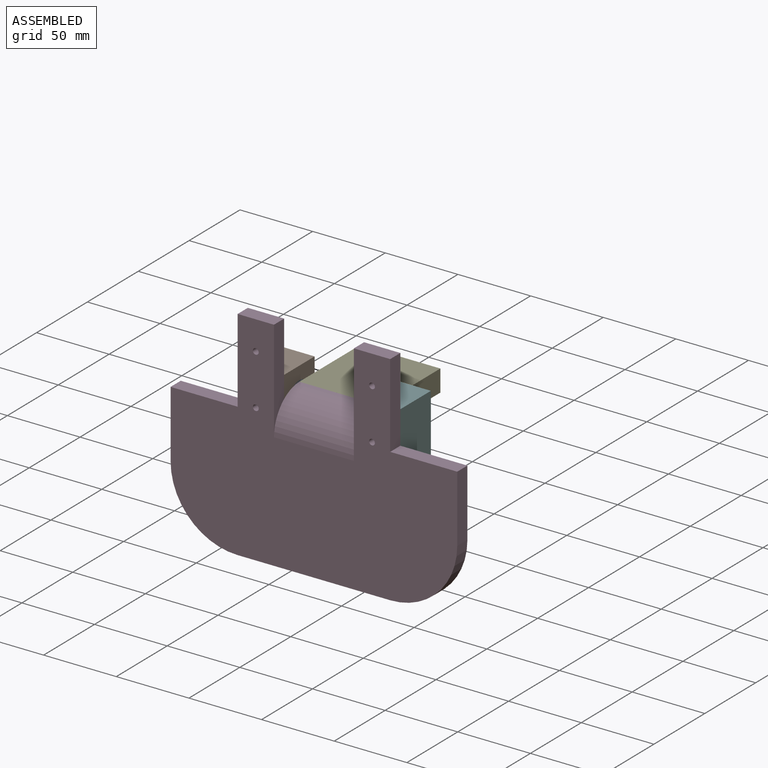
[diagram: assembled view]
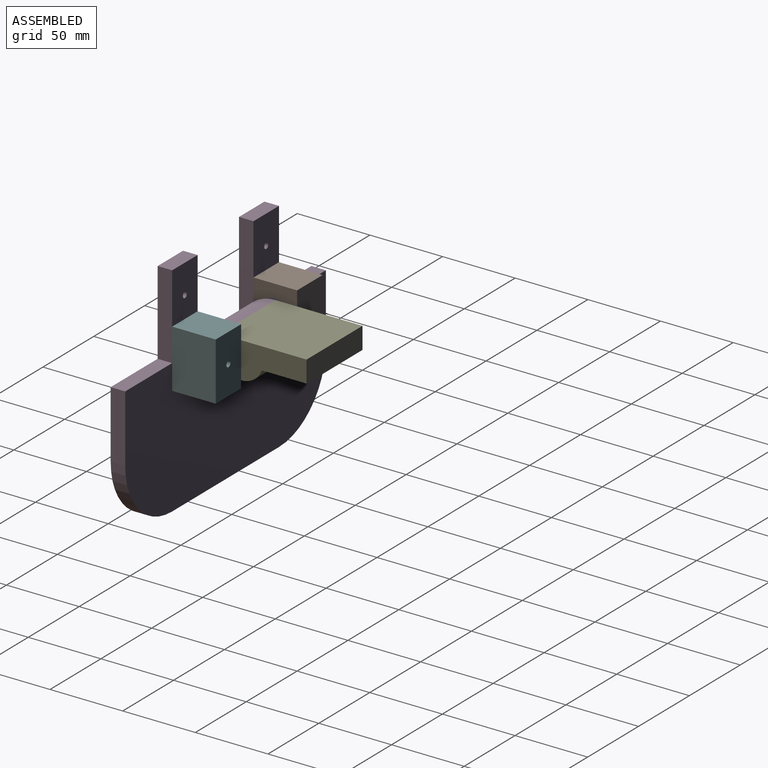
[diagram: assembled view, second angle]
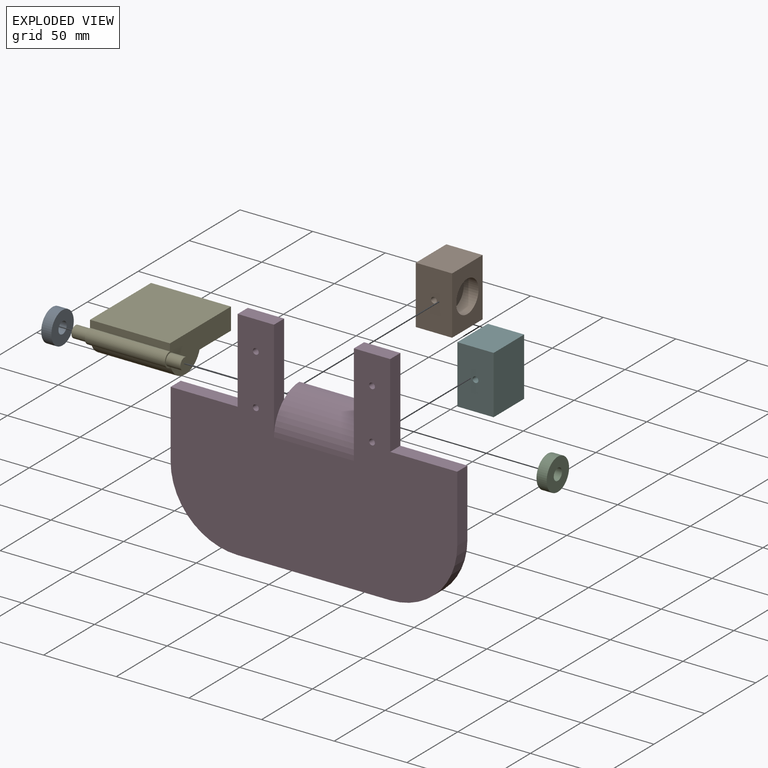
[diagram: exploded view]
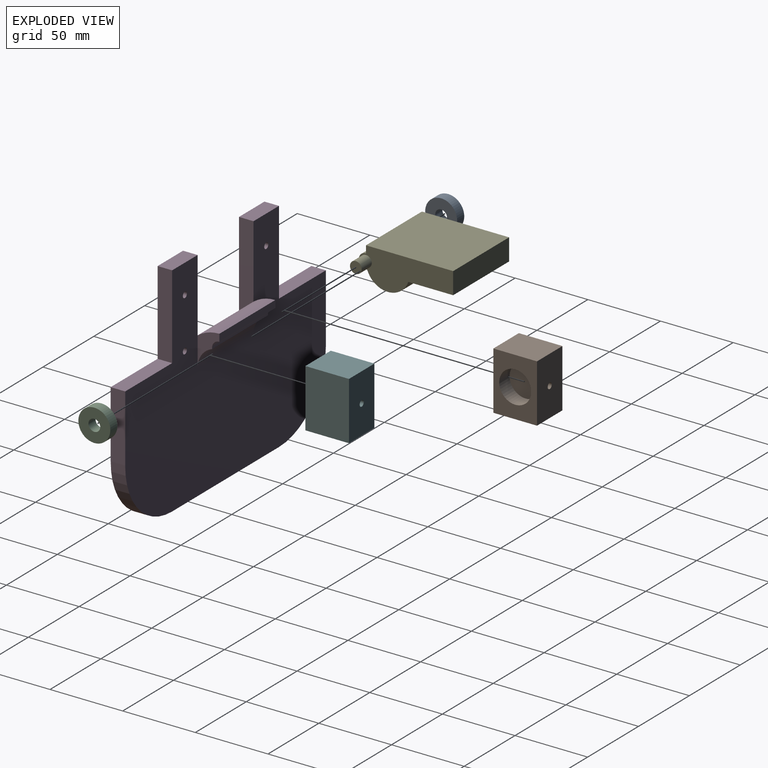
[diagram: exploded view, second angle]
ASSEMBLY  parts=6 mates=5
PART A: 4 faces, bbox 22x22x7 mm
  f0: cylinder r=4.05mm len=8.1mm, axis (0,0,-1), area 178.1mm2, adj f2,f3
  f1: cylinder r=11mm len=22mm, axis (0,0,-1), area 483.8mm2, adj f2,f3
  f2: plane 22x22mm, normal (0,0,1), area 328.6mm2, adj f0,f1
  f3: plane 22x22mm, normal (0,0,-1), area 328.6mm2, adj f0,f1
PART B: 9 faces, bbox 25x40x30 mm
  f0: plane 40x30mm, normal (-1,0,0), area 1200mm2, adj f1,f3,f4,f5
  f1: plane 30x25mm, normal (0,-1,0), area 750mm2, adj f0,f2,f4,f5
  f2: plane 40x30mm, normal (1,0,0), area 819.9mm2, adj f1,f3,f4,f5,f7
  f3: plane 30x25mm, normal (0,1,0), area 750mm2, adj f0,f2,f4,f5
  f4: plane 40x25mm, normal (0,0,1), area 987.4mm2, adj f0,f1,f2,f3,f6
  f5: plane 40x25mm, normal (0,0,-1), area 987.4mm2, adj f0,f1,f2,f3,f6
  f6: cylinder r=2mm len=30mm, axis (0,0,-1), area 377mm2, adj f4,f5
  f7: cylinder r=11mm len=22mm, axis (1,0,0), area 705mm2, adj f2,f8
  f8: plane 22x22mm, normal (1,0,0), area 380.1mm2, adj f7
PART C: same geometry as A
PART D: 26 faces, bbox 25x197.3x150 mm
  f0: plane 57.7x10mm, normal (0,-1,0), area 577mm2, adj f3,f5,f15,f22
  f1: plane 55x5mm, normal (1,0,0), area 275mm2, adj f2,f8,f9,f10
  f2: cylinder r=25mm len=55mm, axis (0,1,0), area 2159.8mm2, adj f1,f3,f9,f10,f13,f14
  f3: plane 197.3x150mm, normal (-1,0,0), area 19455.4mm2, adj f0,f2,f4,f11,f12,f13,f14,f15
  f4: plane 105x10mm, normal (0,0,-1), area 1050mm2, adj f3,f5,f21,f23
  f5: plane 197.3x150mm, normal (1,0,0), area 19455.4mm2, adj f0,f4,f6,f9,f10,f11,f12,f13
  f6: cylinder r=15mm len=55mm, axis (0,1,0), area 1015.5mm2, adj f5,f7,f9,f10
  f7: plane 55x0.86mm, normal (1,0,0), area 47.2mm2, adj f6,f8,f9,f10
  f8: cylinder r=5mm len=55mm, axis (0,1,0), area 432mm2, adj f1,f7,f9,f10
  f9: plane 25x15mm, normal (0,-1,0), area 153.3mm2, adj f1,f2,f5,f6,f7,f8
  f10: plane 25x15mm, normal (0,1,0), area 153.3mm2, adj f1,f2,f5,f6,f7,f8
  f11: plane 25x10mm, normal (0,0,1), area 250mm2, adj f3,f5,f12,f13
  f12: plane 57.7x10mm, normal (0,1,0), area 577mm2, adj f3,f5,f11,f25
  f13: plane 70x10mm, normal (0,-1,0), area 560.2mm2, adj f2,f3,f5,f11
  f14: plane 70x10mm, normal (0,1,0), area 560.2mm2, adj f2,f3,f5,f15
  f15: plane 25x10mm, normal (0,0,1), area 250mm2, adj f0,f3,f5,f14
  f16: cylinder r=2mm len=10mm, axis (1,0,0), area 125.7mm2, adj f3,f5
  f17: cylinder r=2mm len=10mm, axis (1,0,0), area 125.7mm2, adj f3,f5
  f18: cylinder r=2mm len=10mm, axis (1,0,0), area 125.7mm2, adj f3,f5
  f19: cylinder r=2mm len=10mm, axis (1,0,0), area 125.7mm2, adj f3,f5
  f20: plane 46.15x10mm, normal (0,-1,0), area 461.5mm2, adj f3,f5,f21,f22
  f21: cylinder r=46.15mm len=46.15mm, axis (1,0,0), area 724.9mm2, adj f3,f4,f5,f20
  f22: plane 46.15x10mm, normal (0,0,1), area 461.5mm2, adj f0,f3,f5,f20
  f23: cylinder r=46.15mm len=46.15mm, axis (1,0,0), area 724.9mm2, adj f3,f4,f5,f24
  f24: plane 46.15x10mm, normal (0,1,0), area 461.5mm2, adj f3,f5,f23,f25
  f25: plane 46.15x10mm, normal (0,0,1), area 461.5mm2, adj f3,f5,f12,f24
PART E: 13 faces, bbox 65x25x75 mm
  f0: plane 55x30.86mm, normal (0,1,0), area 1697.2mm2, adj f3,f4,f5,f12
  f1: cylinder r=5mm len=55mm, axis (0,0,-1), area 863.9mm2, adj f2,f4,f5,f6
  f2: plane 55x0.86mm, normal (0,1,0), area 47.2mm2, adj f1,f4,f5,f12
  f3: plane 55x15mm, normal (-1,0,0), area 825mm2, adj f0,f4,f5,f7
  f4: plane 65x25mm, normal (0,0,1), area 1095.3mm2, adj f0,f1,f2,f3,f6,f7,f8,f12
  f5: plane 65x25mm, normal (0,0,-1), area 1095.3mm2, adj f0,f1,f2,f3,f6,f7,f10,f12
  f6: plane 55x5mm, normal (1,0,0), area 275mm2, adj f1,f4,f5,f7
  f7: plane 60x55mm, normal (0,-1,0), area 3300mm2, adj f3,f4,f5,f6
  f8: cylinder r=4mm len=10mm, axis (0,0,-1), area 251.3mm2, adj f4,f9
  f9: plane 8x8mm, normal (0,0,1), area 50.3mm2, adj f8
  f10: cylinder r=4mm len=10mm, axis (0,0,1), area 251.3mm2, adj f5,f11
  f11: plane 8x8mm, normal (0,0,-1), area 50.3mm2, adj f10
  f12: cylinder r=15mm len=55mm, axis (0,0,1), area 2031.1mm2, adj f0,f2,f4,f5
PART F: same geometry as B
PLACE A rot(axis=(0,-1,0),90deg) t=(-10.26,40.08,23.98)mm
PLACE B rot(axis=(-1,0,0),90deg) t=(-19.56,25.08,23.98)mm
PLACE C rot(axis=(0,1,0),90deg) t=(51.14,40.08,23.98)mm
PLACE D rot(axis=(0,0,1),90deg) t=(-7.06,20.08,-31.02)mm
PLACE E rot(axis=(-0.58,0.58,-0.58),120deg) t=(-7.06,40.08,23.98)mm
PLACE F rot(axis=(0,0.71,-0.71),180deg) t=(60.44,55.08,23.98)mm
MATE fastened C.f1 <-> F.f7  axis (1,0,0) through (58.14,40.08,23.98)mm
MATE fastened E.f1 <-> D.f8  axis (-1,0,0) through (20.44,40.08,23.98)mm
MATE fastened F.f6 <-> D.f18  axis (0,1,0) through (60.44,25.08,23.98)mm
MATE fastened B.f6 <-> D.f17  axis (0,-1,0) through (-19.56,25.08,23.98)mm
MATE fastened A.f1 <-> B.f7  axis (-1,0,0) through (-17.26,40.08,23.98)mm
